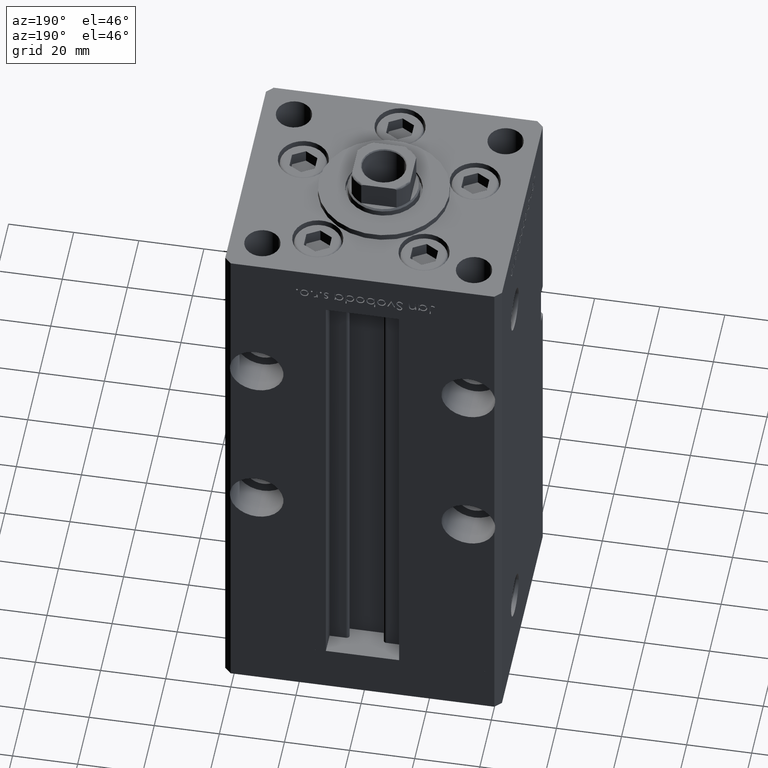
[diagram: clean part render]
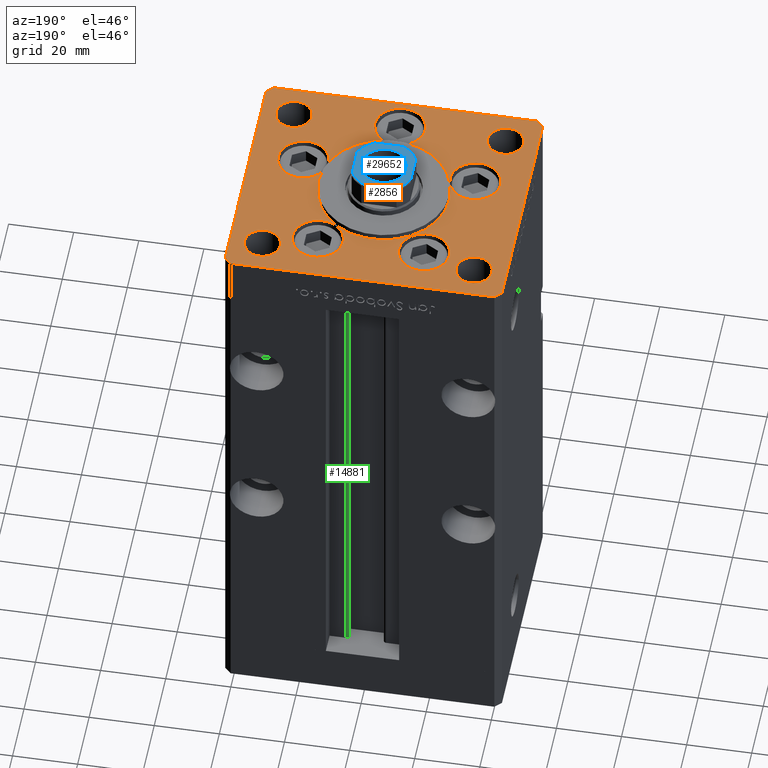
[diagram: same view with three faces highlighted in distinct colors, each labeled with its STEP entity id]
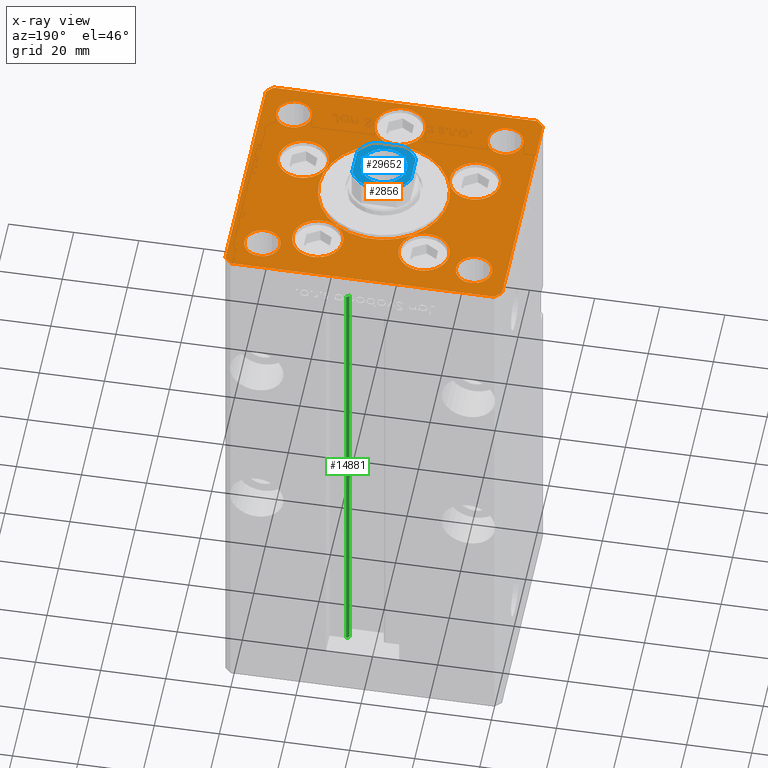
[diagram: x-ray of the same camera — body ghosted, the three highlighted faces saturated]
A machine part, auxiliary view with three faces highlighted in distinct colors.
The next image is the same camera in x-ray (body ghosted, the three faces saturated) — at least one of them is partly hidden behind the body in this view.
Their STEP definitions:

[orange] entity #2856 — the highlighted planar face has unit normal (0, 0, 1).
#17 = ORIENTED_EDGE ( 'NONE', *, *, #27231, .F. ) ;
#145 = ORIENTED_EDGE ( 'NONE', *, *, #30922, .F. ) ;
#216 = DIRECTION ( 'NONE',  ( 0.000000000000000000, 0.000000000000000000, 1.000000000000000000 ) ) ;
#678 = CARTESIAN_POINT ( 'NONE',  ( -40.50000000000000711, -37.50000000000003553, 0.000000000000000000 ) ) ;
#784 = DIRECTION ( 'NONE',  ( 0.000000000000000000, 0.000000000000000000, 1.000000000000000000 ) ) ;
#874 = LINE ( 'NONE', #34194, #36938 ) ;
#1221 = VERTEX_POINT ( 'NONE', #8527 ) ;
#1540 = FACE_BOUND ( 'NONE', #26246, .T. ) ;
#1968 = VECTOR ( 'NONE', #41469, 1000.000000000000000 ) ;
#2116 = AXIS2_PLACEMENT_3D ( 'NONE', #24696, #7783, #19868 ) ;
#2156 = EDGE_LOOP ( 'NONE', ( #9418, #145 ) ) ;
#2349 = CARTESIAN_POINT ( 'NONE',  ( 27.00000000000000355, -27.50000000000000355, 0.000000000000000000 ) ) ;
#2354 = FACE_BOUND ( 'NONE', #2156, .T. ) ;
#2856 = ADVANCED_FACE ( 'NONE', ( #14713, #6392, #22765, #2354, #1540, #31107, #47238, #18731, #10411, #51273, #46699 ), #35137, .T. ) ;
#2888 = CARTESIAN_POINT ( 'NONE',  ( 27.00000000000000355, 27.49999999999999645, 0.000000000000000000 ) ) ;
#2935 = VERTEX_POINT ( 'NONE', #2888 ) ;
#3602 = LINE ( 'NONE', #11408, #5369 ) ;
#3654 = ORIENTED_EDGE ( 'NONE', *, *, #32557, .F. ) ;
#3689 = VECTOR ( 'NONE', #16222, 1000.000000000000000 ) ;
#4049 = CARTESIAN_POINT ( 'NONE',  ( -24.07291334290544071, 22.74999999999999289, 0.000000000000000000 ) ) ;
#4136 = CARTESIAN_POINT ( 'NONE',  ( 42.50000000000000711, -35.49999999999992895, 0.000000000000000000 ) ) ;
#4265 = ORIENTED_EDGE ( 'NONE', *, *, #6419, .T. ) ;
#4510 = EDGE_LOOP ( 'NONE', ( #14331, #21443 ) ) ;
#4981 = ORIENTED_EDGE ( 'NONE', *, *, #42820, .F. ) ;
#5129 = DIRECTION ( 'NONE',  ( 0.000000000000000000, 0.000000000000000000, 1.000000000000000000 ) ) ;
#5369 = VECTOR ( 'NONE', #20251, 1000.000000000000000 ) ;
#5449 = DIRECTION ( 'NONE',  ( -1.000000000000000000, -4.283267841918041508E-16, 0.000000000000000000 ) ) ;
#5851 = VERTEX_POINT ( 'NONE', #13433 ) ;
#5930 = CARTESIAN_POINT ( 'NONE',  ( -26.39865316429777664, -9.333333333333330373, 0.000000000000000000 ) ) ;
#6000 = VERTEX_POINT ( 'NONE', #35971 ) ;
#6254 = CARTESIAN_POINT ( 'NONE',  ( -32.50000000000000000, 27.50000000000000711, 0.000000000000000000 ) ) ;
#6386 = EDGE_CURVE ( 'NONE', #12958, #12622, #3602, .T. ) ;
#6392 = FACE_BOUND ( 'NONE', #38918, .T. ) ;
#6419 = EDGE_CURVE ( 'NONE', #9071, #12958, #44195, .T. ) ;
#6482 = EDGE_CURVE ( 'NONE', #30467, #28410, #17266, .T. ) ;
#6770 = CIRCLE ( 'NONE', #12785, 7.750000000000000000 ) ;
#7496 = CARTESIAN_POINT ( 'NONE',  ( 7.750000000000000000, -28.00000000000000000, 0.000000000000000000 ) ) ;
#7588 = EDGE_LOOP ( 'NONE', ( #28521, #23246 ) ) ;
#7783 = DIRECTION ( 'NONE',  ( -0.000000000000000000, -0.000000000000000000, -1.000000000000000000 ) ) ;
#7837 = CARTESIAN_POINT ( 'NONE',  ( -38.00000000000000000, 27.50000000000000711, 0.000000000000000000 ) ) ;
#8475 = VERTEX_POINT ( 'NONE', #37775 ) ;
#8527 = CARTESIAN_POINT ( 'NONE',  ( 20.00000000000000000, -4.489600305612522259E-15, 0.000000000000000000 ) ) ;
#8566 = CIRCLE ( 'NONE', #41999, 7.750000000000000000 ) ;
#8792 = AXIS2_PLACEMENT_3D ( 'NONE', #19128, #39825, #36041 ) ;
#9071 = VERTEX_POINT ( 'NONE', #39518 ) ;
#9188 = DIRECTION ( 'NONE',  ( 1.000000000000000000, 0.000000000000000000, 0.000000000000000000 ) ) ;
#9331 = CARTESIAN_POINT ( 'NONE',  ( 0.000000000000000000, -6.938893903907228378E-15, 0.000000000000000000 ) ) ;
#9418 = ORIENTED_EDGE ( 'NONE', *, *, #24726, .F. ) ;
#9489 = CARTESIAN_POINT ( 'NONE',  ( -16.32291334290544071, 22.74999999999999289, 0.000000000000000000 ) ) ;
#9740 = CIRCLE ( 'NONE', #36360, 20.00000000000000000 ) ;
#9777 = VERTEX_POINT ( 'NONE', #31632 ) ;
#9786 = VECTOR ( 'NONE', #12536, 1000.000000000000000 ) ;
#9953 = VERTEX_POINT ( 'NONE', #678 ) ;
#10011 = VERTEX_POINT ( 'NONE', #21894 ) ;
#10069 = VERTEX_POINT ( 'NONE', #18668 ) ;
#10411 = FACE_BOUND ( 'NONE', #10686, .T. ) ;
#10434 = CARTESIAN_POINT ( 'NONE',  ( 32.50000000000000000, 27.49999999999999645, 0.000000000000000000 ) ) ;
#10663 = CARTESIAN_POINT ( 'NONE',  ( 40.50000000000000711, 37.50000000000000711, 0.000000000000000000 ) ) ;
#10686 = EDGE_LOOP ( 'NONE', ( #17, #50138 ) ) ;
#10997 = CARTESIAN_POINT ( 'NONE',  ( 16.32291334290544071, 22.74999999999999289, 0.000000000000000000 ) ) ;
#11072 = CIRCLE ( 'NONE', #47131, 7.750000000000000000 ) ;
#11408 = CARTESIAN_POINT ( 'NONE',  ( 42.50000000000001421, 35.50000000000002132, 0.000000000000000000 ) ) ;
#12031 = EDGE_LOOP ( 'NONE', ( #48258, #52156, #34393, #4265, #22915, #18317, #36911, #48874 ) ) ;
#12053 = DIRECTION ( 'NONE',  ( 0.000000000000000000, 0.000000000000000000, 1.000000000000000000 ) ) ;
#12395 = CIRCLE ( 'NONE', #42418, 5.499999999999998224 ) ;
#12536 = DIRECTION ( 'NONE',  ( -0.7071067811865536790, -0.7071067811865414665, 0.000000000000000000 ) ) ;
#12622 = VERTEX_POINT ( 'NONE', #10663 ) ;
#12785 = AXIS2_PLACEMENT_3D ( 'NONE', #9489, #33156, #49822 ) ;
#12958 = VERTEX_POINT ( 'NONE', #17173 ) ;
#13415 = AXIS2_PLACEMENT_3D ( 'NONE', #25043, #49781, #9188 ) ;
#13433 = CARTESIAN_POINT ( 'NONE',  ( -7.750000000000000000, -28.00000000000000000, 0.000000000000000000 ) ) ;
#13845 = CIRCLE ( 'NONE', #32759, 7.750000000000000000 ) ;
#14122 = VERTEX_POINT ( 'NONE', #2349 ) ;
#14331 = ORIENTED_EDGE ( 'NONE', *, *, #36630, .F. ) ;
#14630 = AXIS2_PLACEMENT_3D ( 'NONE', #9331, #46409, #21403 ) ;
#14713 = FACE_BOUND ( 'NONE', #15555, .T. ) ;
#14744 = AXIS2_PLACEMENT_3D ( 'NONE', #30571, #46425, #51009 ) ;
#15555 = EDGE_LOOP ( 'NONE', ( #33780, #3654 ) ) ;
#15575 = EDGE_CURVE ( 'NONE', #43641, #14122, #12395, .T. ) ;
#15630 = DIRECTION ( 'NONE',  ( -0.000000000000000000, -0.000000000000000000, -1.000000000000000000 ) ) ;
#15727 = LINE ( 'NONE', #48527, #49499 ) ;
#15774 = EDGE_CURVE ( 'NONE', #17085, #30467, #41274, .T. ) ;
#15917 = VECTOR ( 'NONE', #39207, 1000.000000000000000 ) ;
#16222 = DIRECTION ( 'NONE',  ( 9.773090005503145261E-17, 1.000000000000000000, 0.000000000000000000 ) ) ;
#16393 = VERTEX_POINT ( 'NONE', #37574 ) ;
#17032 = CIRCLE ( 'NONE', #37629, 5.499999999999998224 ) ;
#17085 = VERTEX_POINT ( 'NONE', #37127 ) ;
#17173 = CARTESIAN_POINT ( 'NONE',  ( 42.50000000000001421, 35.50000000000002132, 0.000000000000000000 ) ) ;
#17266 = LINE ( 'NONE', #21038, #1968 ) ;
#17316 = EDGE_CURVE ( 'NONE', #35059, #37793, #33865, .T. ) ;
#17431 = CARTESIAN_POINT ( 'NONE',  ( 40.50000000000001421, -37.49999999999992184, 0.000000000000000000 ) ) ;
#17705 = CARTESIAN_POINT ( 'NONE',  ( -42.50000000000000000, -35.50000000000004263, 0.000000000000000000 ) ) ;
#18270 = DIRECTION ( 'NONE',  ( 1.000000000000000000, 0.000000000000000000, 0.000000000000000000 ) ) ;
#18317 = ORIENTED_EDGE ( 'NONE', *, *, #33705, .T. ) ;
#18475 = VERTEX_POINT ( 'NONE', #26439 ) ;
#18668 = CARTESIAN_POINT ( 'NONE',  ( 8.572913342905442491, 22.74999999999999289, 0.000000000000000000 ) ) ;
#18722 = AXIS2_PLACEMENT_3D ( 'NONE', #24666, #216, #49153 ) ;
#18731 = FACE_BOUND ( 'NONE', #34994, .T. ) ;
#19013 = DIRECTION ( 'NONE',  ( 0.000000000000000000, 0.000000000000000000, 1.000000000000000000 ) ) ;
#19128 = CARTESIAN_POINT ( 'NONE',  ( -32.50000000000000000, -27.50000000000000355, 0.000000000000000000 ) ) ;
#19165 = EDGE_CURVE ( 'NONE', #28410, #9953, #31157, .T. ) ;
#19401 = DIRECTION ( 'NONE',  ( -1.000000000000000000, 0.000000000000000000, 0.000000000000000000 ) ) ;
#19868 = DIRECTION ( 'NONE',  ( -1.000000000000000000, 0.000000000000000000, 0.000000000000000000 ) ) ;
#20108 = CARTESIAN_POINT ( 'NONE',  ( 26.39865316429777664, -9.333333333333330373, 0.000000000000000000 ) ) ;
#20251 = DIRECTION ( 'NONE',  ( -0.7071067811865524577, 0.7071067811865426878, 0.000000000000000000 ) ) ;
#20353 = DIRECTION ( 'NONE',  ( 1.000000000000000000, 0.000000000000000000, 0.000000000000000000 ) ) ;
#20570 = ORIENTED_EDGE ( 'NONE', *, *, #21860, .F. ) ;
#20742 = AXIS2_PLACEMENT_3D ( 'NONE', #49135, #48603, #20353 ) ;
#21038 = CARTESIAN_POINT ( 'NONE',  ( -42.50000000000000711, 35.50000000000000000, 0.000000000000000000 ) ) ;
#21370 = CARTESIAN_POINT ( 'NONE',  ( -40.50000000000000000, 37.49999999999997158, 0.000000000000000000 ) ) ;
#21403 = DIRECTION ( 'NONE',  ( 1.000000000000000000, 0.000000000000000000, 0.000000000000000000 ) ) ;
#21427 = EDGE_CURVE ( 'NONE', #9953, #36893, #15727, .T. ) ;
#21443 = ORIENTED_EDGE ( 'NONE', *, *, #32440, .F. ) ;
#21860 = EDGE_CURVE ( 'NONE', #25613, #6000, #24581, .T. ) ;
#21894 = CARTESIAN_POINT ( 'NONE',  ( -38.00000000000000000, -27.50000000000000355, 0.000000000000000000 ) ) ;
#22130 = EDGE_CURVE ( 'NONE', #2935, #18475, #35880, .T. ) ;
#22765 = FACE_BOUND ( 'NONE', #4510, .T. ) ;
#22915 = ORIENTED_EDGE ( 'NONE', *, *, #6386, .T. ) ;
#23246 = ORIENTED_EDGE ( 'NONE', *, *, #17316, .T. ) ;
#23315 = CARTESIAN_POINT ( 'NONE',  ( 16.32291334290544071, 22.74999999999999289, 0.000000000000000000 ) ) ;
#23584 = ORIENTED_EDGE ( 'NONE', *, *, #15575, .T. ) ;
#24016 = DIRECTION ( 'NONE',  ( -1.000000000000000000, 0.000000000000000000, 0.000000000000000000 ) ) ;
#24234 = AXIS2_PLACEMENT_3D ( 'NONE', #26328, #42721, #30634 ) ;
#24309 = EDGE_CURVE ( 'NONE', #37793, #35059, #17032, .T. ) ;
#24581 = CIRCLE ( 'NONE', #13415, 7.750000000000000000 ) ;
#24666 = CARTESIAN_POINT ( 'NONE',  ( -32.50000000000000000, -27.50000000000000355, 0.000000000000000000 ) ) ;
#24696 = CARTESIAN_POINT ( 'NONE',  ( -32.50000000000000000, 27.50000000000000711, 0.000000000000000000 ) ) ;
#24726 = EDGE_CURVE ( 'NONE', #27779, #44356, #11072, .T. ) ;
#25043 = CARTESIAN_POINT ( 'NONE',  ( -26.39865316429777664, -9.333333333333330373, 0.000000000000000000 ) ) ;
#25279 = EDGE_CURVE ( 'NONE', #5851, #27235, #51432, .T. ) ;
#25563 = EDGE_LOOP ( 'NONE', ( #4981, #20570 ) ) ;
#25613 = VERTEX_POINT ( 'NONE', #47538 ) ;
#25734 = DIRECTION ( 'NONE',  ( -1.000000000000000000, 0.000000000000000000, 0.000000000000000000 ) ) ;
#26246 = EDGE_LOOP ( 'NONE', ( #42122, #45047 ) ) ;
#26328 = CARTESIAN_POINT ( 'NONE',  ( -16.32291334290544071, 22.74999999999999289, 0.000000000000000000 ) ) ;
#26439 = CARTESIAN_POINT ( 'NONE',  ( 38.00000000000000000, 27.49999999999999645, 0.000000000000000000 ) ) ;
#26740 = CIRCLE ( 'NONE', #20742, 7.750000000000000000 ) ;
#26882 = ORIENTED_EDGE ( 'NONE', *, *, #50099, .F. ) ;
#27231 = EDGE_CURVE ( 'NONE', #9777, #10011, #49656, .T. ) ;
#27235 = VERTEX_POINT ( 'NONE', #7496 ) ;
#27303 = AXIS2_PLACEMENT_3D ( 'NONE', #40573, #784, #36549 ) ;
#27358 = DIRECTION ( 'NONE',  ( 1.000000000000000000, 0.000000000000000000, 0.000000000000000000 ) ) ;
#27779 = VERTEX_POINT ( 'NONE', #51213 ) ;
#28325 = CARTESIAN_POINT ( 'NONE',  ( 32.50000000000000000, -27.50000000000000355, 0.000000000000000000 ) ) ;
#28345 = AXIS2_PLACEMENT_3D ( 'NONE', #10997, #35958, #48074 ) ;
#28410 = VERTEX_POINT ( 'NONE', #35144 ) ;
#28521 = ORIENTED_EDGE ( 'NONE', *, *, #24309, .T. ) ;
#28799 = EDGE_CURVE ( 'NONE', #29898, #8475, #6770, .T. ) ;
#29898 = VERTEX_POINT ( 'NONE', #4049 ) ;
#30467 = VERTEX_POINT ( 'NONE', #43860 ) ;
#30562 = CARTESIAN_POINT ( 'NONE',  ( 0.000000000000000000, -6.938893903907228378E-15, 0.000000000000000000 ) ) ;
#30571 = CARTESIAN_POINT ( 'NONE',  ( 0.000000000000000000, 0.000000000000000000, 0.000000000000000000 ) ) ;
#30634 = DIRECTION ( 'NONE',  ( 1.000000000000000000, 0.000000000000000000, 0.000000000000000000 ) ) ;
#30788 = DIRECTION ( 'NONE',  ( 1.000000000000000000, 0.000000000000000000, 0.000000000000000000 ) ) ;
#30922 = EDGE_CURVE ( 'NONE', #44356, #27779, #8566, .T. ) ;
#30930 = CIRCLE ( 'NONE', #14630, 20.00000000000000000 ) ;
#31107 = FACE_BOUND ( 'NONE', #25563, .T. ) ;
#31157 = LINE ( 'NONE', #17705, #15917 ) ;
#31399 = DIRECTION ( 'NONE',  ( 0.000000000000000000, 0.000000000000000000, 1.000000000000000000 ) ) ;
#31632 = CARTESIAN_POINT ( 'NONE',  ( -27.00000000000000355, -27.50000000000000355, 0.000000000000000000 ) ) ;
#31960 = CIRCLE ( 'NONE', #24234, 7.750000000000000000 ) ;
#32064 = CARTESIAN_POINT ( 'NONE',  ( 18.64865316429777664, -9.333333333333328596, 0.000000000000000000 ) ) ;
#32440 = EDGE_CURVE ( 'NONE', #10069, #52898, #42041, .T. ) ;
#32557 = EDGE_CURVE ( 'NONE', #1221, #16393, #30930, .T. ) ;
#32759 = AXIS2_PLACEMENT_3D ( 'NONE', #23315, #31399, #47803 ) ;
#33156 = DIRECTION ( 'NONE',  ( 0.000000000000000000, 0.000000000000000000, 1.000000000000000000 ) ) ;
#33435 = LINE ( 'NONE', #17431, #36468 ) ;
#33705 = EDGE_CURVE ( 'NONE', #12622, #17085, #874, .T. ) ;
#33780 = ORIENTED_EDGE ( 'NONE', *, *, #46949, .F. ) ;
#33865 = CIRCLE ( 'NONE', #2116, 5.499999999999998224 ) ;
#34194 = CARTESIAN_POINT ( 'NONE',  ( 40.50000000000000711, 37.50000000000000711, 0.000000000000000000 ) ) ;
#34321 = DIRECTION ( 'NONE',  ( 0.000000000000000000, 0.000000000000000000, 1.000000000000000000 ) ) ;
#34393 = ORIENTED_EDGE ( 'NONE', *, *, #51441, .T. ) ;
#34643 = ORIENTED_EDGE ( 'NONE', *, *, #39306, .F. ) ;
#34994 = EDGE_LOOP ( 'NONE', ( #26882, #49924 ) ) ;
#35059 = VERTEX_POINT ( 'NONE', #7837 ) ;
#35137 = PLANE ( 'NONE',  #14744 ) ;
#35144 = CARTESIAN_POINT ( 'NONE',  ( -42.50000000000000000, -35.50000000000004263, 0.000000000000000000 ) ) ;
#35753 = CARTESIAN_POINT ( 'NONE',  ( 38.00000000000000000, -27.50000000000000355, 0.000000000000000000 ) ) ;
#35880 = CIRCLE ( 'NONE', #27303, 5.499999999999998224 ) ;
#35958 = DIRECTION ( 'NONE',  ( 0.000000000000000000, 0.000000000000000000, 1.000000000000000000 ) ) ;
#35971 = CARTESIAN_POINT ( 'NONE',  ( -18.64865316429777664, -9.333333333333330373, 0.000000000000000000 ) ) ;
#36041 = DIRECTION ( 'NONE',  ( 1.000000000000000000, 0.000000000000000000, 0.000000000000000000 ) ) ;
#36360 = AXIS2_PLACEMENT_3D ( 'NONE', #30562, #34321, #50461 ) ;
#36401 = CIRCLE ( 'NONE', #45849, 5.499999999999998224 ) ;
#36468 = VECTOR ( 'NONE', #37591, 1000.000000000000114 ) ;
#36549 = DIRECTION ( 'NONE',  ( 1.000000000000000000, 0.000000000000000000, 0.000000000000000000 ) ) ;
#36630 = EDGE_CURVE ( 'NONE', #52898, #10069, #13845, .T. ) ;
#36893 = VERTEX_POINT ( 'NONE', #42215 ) ;
#36911 = ORIENTED_EDGE ( 'NONE', *, *, #15774, .T. ) ;
#36913 = DIRECTION ( 'NONE',  ( -0.000000000000000000, -0.000000000000000000, -1.000000000000000000 ) ) ;
#36938 = VECTOR ( 'NONE', #5449, 1000.000000000000000 ) ;
#37127 = CARTESIAN_POINT ( 'NONE',  ( -40.50000000000000000, 37.49999999999997158, 0.000000000000000000 ) ) ;
#37190 = EDGE_CURVE ( 'NONE', #27235, #5851, #26740, .T. ) ;
#37574 = CARTESIAN_POINT ( 'NONE',  ( -20.00000000000000000, -6.938893903907228378E-15, 0.000000000000000000 ) ) ;
#37591 = DIRECTION ( 'NONE',  ( 0.7071067811865474617, 0.7071067811865474617, 0.000000000000000000 ) ) ;
#37629 = AXIS2_PLACEMENT_3D ( 'NONE', #6254, #15630, #19401 ) ;
#37775 = CARTESIAN_POINT ( 'NONE',  ( -8.572913342905440715, 22.74999999999999289, 0.000000000000000000 ) ) ;
#37793 = VERTEX_POINT ( 'NONE', #52506 ) ;
#38918 = EDGE_LOOP ( 'NONE', ( #34643, #52561 ) ) ;
#39109 = CARTESIAN_POINT ( 'NONE',  ( 26.39865316429777664, -9.333333333333330373, 0.000000000000000000 ) ) ;
#39115 = EDGE_CURVE ( 'NONE', #10011, #9777, #46528, .T. ) ;
#39207 = DIRECTION ( 'NONE',  ( 0.7071067811865487940, -0.7071067811865463515, 0.000000000000000000 ) ) ;
#39306 = EDGE_CURVE ( 'NONE', #8475, #29898, #31960, .T. ) ;
#39518 = CARTESIAN_POINT ( 'NONE',  ( 42.50000000000000711, -35.49999999999992895, 0.000000000000000000 ) ) ;
#39825 = DIRECTION ( 'NONE',  ( 0.000000000000000000, 0.000000000000000000, 1.000000000000000000 ) ) ;
#40015 = EDGE_LOOP ( 'NONE', ( #23584, #52558 ) ) ;
#40527 = AXIS2_PLACEMENT_3D ( 'NONE', #5930, #46509, #18270 ) ;
#40573 = CARTESIAN_POINT ( 'NONE',  ( 32.50000000000000000, 27.49999999999999645, 0.000000000000000000 ) ) ;
#41274 = LINE ( 'NONE', #21370, #9786 ) ;
#41469 = DIRECTION ( 'NONE',  ( 9.773090005503134168E-17, -1.000000000000000000, 0.000000000000000000 ) ) ;
#41999 = AXIS2_PLACEMENT_3D ( 'NONE', #20108, #12053, #44060 ) ;
#42041 = CIRCLE ( 'NONE', #28345, 7.750000000000000000 ) ;
#42122 = ORIENTED_EDGE ( 'NONE', *, *, #37190, .F. ) ;
#42202 = DIRECTION ( 'NONE',  ( 1.000000000000000000, 0.000000000000000000, 0.000000000000000000 ) ) ;
#42215 = CARTESIAN_POINT ( 'NONE',  ( 40.50000000000001421, -37.49999999999992184, 0.000000000000000000 ) ) ;
#42418 = AXIS2_PLACEMENT_3D ( 'NONE', #50214, #46181, #25734 ) ;
#42721 = DIRECTION ( 'NONE',  ( 0.000000000000000000, 0.000000000000000000, 1.000000000000000000 ) ) ;
#42820 = EDGE_CURVE ( 'NONE', #6000, #25613, #43118, .T. ) ;
#43118 = CIRCLE ( 'NONE', #40527, 7.750000000000000000 ) ;
#43641 = VERTEX_POINT ( 'NONE', #35753 ) ;
#43860 = CARTESIAN_POINT ( 'NONE',  ( -42.50000000000000711, 35.50000000000000000, 0.000000000000000000 ) ) ;
#44060 = DIRECTION ( 'NONE',  ( 1.000000000000000000, 0.000000000000000000, 0.000000000000000000 ) ) ;
#44195 = LINE ( 'NONE', #4136, #3689 ) ;
#44356 = VERTEX_POINT ( 'NONE', #32064 ) ;
#45047 = ORIENTED_EDGE ( 'NONE', *, *, #25279, .F. ) ;
#45048 = CIRCLE ( 'NONE', #49315, 5.499999999999998224 ) ;
#45849 = AXIS2_PLACEMENT_3D ( 'NONE', #28325, #36913, #24016 ) ;
#46078 = DIRECTION ( 'NONE',  ( 1.000000000000000000, 1.370645709413773283E-15, 0.000000000000000000 ) ) ;
#46181 = DIRECTION ( 'NONE',  ( -0.000000000000000000, -0.000000000000000000, -1.000000000000000000 ) ) ;
#46409 = DIRECTION ( 'NONE',  ( 0.000000000000000000, 0.000000000000000000, 1.000000000000000000 ) ) ;
#46425 = DIRECTION ( 'NONE',  ( -0.000000000000000000, 0.000000000000000000, 1.000000000000000000 ) ) ;
#46509 = DIRECTION ( 'NONE',  ( 0.000000000000000000, 0.000000000000000000, 1.000000000000000000 ) ) ;
#46528 = CIRCLE ( 'NONE', #8792, 5.499999999999998224 ) ;
#46699 = FACE_BOUND ( 'NONE', #40015, .T. ) ;
#46949 = EDGE_CURVE ( 'NONE', #16393, #1221, #9740, .T. ) ;
#47046 = CARTESIAN_POINT ( 'NONE',  ( 0.000000000000000000, -28.00000000000000000, 0.000000000000000000 ) ) ;
#47131 = AXIS2_PLACEMENT_3D ( 'NONE', #39109, #50956, #30788 ) ;
#47238 = FACE_BOUND ( 'NONE', #7588, .T. ) ;
#47538 = CARTESIAN_POINT ( 'NONE',  ( -34.14865316429777664, -9.333333333333328596, 0.000000000000000000 ) ) ;
#47803 = DIRECTION ( 'NONE',  ( 1.000000000000000000, 0.000000000000000000, 0.000000000000000000 ) ) ;
#48074 = DIRECTION ( 'NONE',  ( 1.000000000000000000, 0.000000000000000000, 0.000000000000000000 ) ) ;
#48258 = ORIENTED_EDGE ( 'NONE', *, *, #19165, .T. ) ;
#48527 = CARTESIAN_POINT ( 'NONE',  ( -40.50000000000000711, -37.50000000000003553, 0.000000000000000000 ) ) ;
#48545 = EDGE_CURVE ( 'NONE', #14122, #43641, #36401, .T. ) ;
#48603 = DIRECTION ( 'NONE',  ( 0.000000000000000000, 0.000000000000000000, 1.000000000000000000 ) ) ;
#48874 = ORIENTED_EDGE ( 'NONE', *, *, #6482, .T. ) ;
#49135 = CARTESIAN_POINT ( 'NONE',  ( 0.000000000000000000, -28.00000000000000000, 0.000000000000000000 ) ) ;
#49153 = DIRECTION ( 'NONE',  ( 1.000000000000000000, 0.000000000000000000, 0.000000000000000000 ) ) ;
#49315 = AXIS2_PLACEMENT_3D ( 'NONE', #10434, #19013, #27358 ) ;
#49499 = VECTOR ( 'NONE', #46078, 1000.000000000000000 ) ;
#49656 = CIRCLE ( 'NONE', #18722, 5.499999999999998224 ) ;
#49781 = DIRECTION ( 'NONE',  ( 0.000000000000000000, 0.000000000000000000, 1.000000000000000000 ) ) ;
#49822 = DIRECTION ( 'NONE',  ( 1.000000000000000000, 0.000000000000000000, 0.000000000000000000 ) ) ;
#49924 = ORIENTED_EDGE ( 'NONE', *, *, #22130, .F. ) ;
#50099 = EDGE_CURVE ( 'NONE', #18475, #2935, #45048, .T. ) ;
#50138 = ORIENTED_EDGE ( 'NONE', *, *, #39115, .F. ) ;
#50214 = CARTESIAN_POINT ( 'NONE',  ( 32.50000000000000000, -27.50000000000000355, 0.000000000000000000 ) ) ;
#50461 = DIRECTION ( 'NONE',  ( 1.000000000000000000, 0.000000000000000000, 0.000000000000000000 ) ) ;
#50545 = AXIS2_PLACEMENT_3D ( 'NONE', #47046, #5129, #42202 ) ;
#50956 = DIRECTION ( 'NONE',  ( 0.000000000000000000, 0.000000000000000000, 1.000000000000000000 ) ) ;
#51009 = DIRECTION ( 'NONE',  ( 1.000000000000000000, 0.000000000000000000, 0.000000000000000000 ) ) ;
#51213 = CARTESIAN_POINT ( 'NONE',  ( 34.14865316429777664, -9.333333333333330373, 0.000000000000000000 ) ) ;
#51273 = FACE_OUTER_BOUND ( 'NONE', #12031, .T. ) ;
#51432 = CIRCLE ( 'NONE', #50545, 7.750000000000000000 ) ;
#51441 = EDGE_CURVE ( 'NONE', #36893, #9071, #33435, .T. ) ;
#52156 = ORIENTED_EDGE ( 'NONE', *, *, #21427, .T. ) ;
#52307 = CARTESIAN_POINT ( 'NONE',  ( 24.07291334290544071, 22.74999999999999289, 0.000000000000000000 ) ) ;
#52506 = CARTESIAN_POINT ( 'NONE',  ( -27.00000000000000355, 27.50000000000000711, 0.000000000000000000 ) ) ;
#52558 = ORIENTED_EDGE ( 'NONE', *, *, #48545, .T. ) ;
#52561 = ORIENTED_EDGE ( 'NONE', *, *, #28799, .F. ) ;
#52898 = VERTEX_POINT ( 'NONE', #52307 ) ;

[blue] entity #29652 — the highlighted planar face has unit normal (0, 0, 1).
#160 = ORIENTED_EDGE ( 'NONE', *, *, #1423, .T. ) ;
#997 = DIRECTION ( 'NONE',  ( 9.637352644315595243E-17, -1.000000000000000000, 0.000000000000000000 ) ) ;
#1423 = EDGE_CURVE ( 'NONE', #10541, #47428, #16193, .T. ) ;
#1448 = CARTESIAN_POINT ( 'NONE',  ( 0.000000000000000000, 0.000000000000000000, 155.7500000000000000 ) ) ;
#1860 = VERTEX_POINT ( 'NONE', #48600 ) ;
#2921 = AXIS2_PLACEMENT_3D ( 'NONE', #29511, #12855, #16622 ) ;
#3038 = CARTESIAN_POINT ( 'NONE',  ( 0.000000000000000000, 0.000000000000000000, 155.7500000000000000 ) ) ;
#3327 = PLANE ( 'NONE',  #40276 ) ;
#3423 = LINE ( 'NONE', #28135, #10218 ) ;
#4456 = AXIS2_PLACEMENT_3D ( 'NONE', #36892, #53037, #16210 ) ;
#4826 = CIRCLE ( 'NONE', #25426, 10.00000000000000000 ) ;
#5513 = CARTESIAN_POINT ( 'NONE',  ( 9.000000000000000000, 4.358898943540675752, 155.7500000000000000 ) ) ;
#7077 = CARTESIAN_POINT ( 'NONE',  ( -9.000000000000000000, 8.999999999999998224, 155.7500000000000000 ) ) ;
#7236 = CARTESIAN_POINT ( 'NONE',  ( -9.000000000000000000, -4.358898943540675752, 155.7500000000000000 ) ) ;
#7342 = LINE ( 'NONE', #7077, #23693 ) ;
#8132 = VERTEX_POINT ( 'NONE', #45464 ) ;
#8909 = VERTEX_POINT ( 'NONE', #49253 ) ;
#10218 = VECTOR ( 'NONE', #12281, 1000.000000000000000 ) ;
#10394 = CARTESIAN_POINT ( 'NONE',  ( 0.000000000000000000, 0.000000000000000000, 155.7500000000000000 ) ) ;
#10541 = VERTEX_POINT ( 'NONE', #16423 ) ;
#10675 = DIRECTION ( 'NONE',  ( -0.000000000000000000, 0.000000000000000000, 1.000000000000000000 ) ) ;
#10681 = CIRCLE ( 'NONE', #2921, 10.00000000000000000 ) ;
#12281 = DIRECTION ( 'NONE',  ( 1.000000000000000000, 0.000000000000000000, 0.000000000000000000 ) ) ;
#12312 = VERTEX_POINT ( 'NONE', #21723 ) ;
#12436 = CARTESIAN_POINT ( 'NONE',  ( 9.000000000000000000, 8.999999999999998224, 155.7500000000000000 ) ) ;
#12695 = DIRECTION ( 'NONE',  ( -9.637352644315595243E-17, 1.000000000000000000, -0.000000000000000000 ) ) ;
#12855 = DIRECTION ( 'NONE',  ( -0.000000000000000000, 0.000000000000000000, 1.000000000000000000 ) ) ;
#13371 = CARTESIAN_POINT ( 'NONE',  ( -9.000000000000000000, 8.999999999999998224, 155.7500000000000000 ) ) ;
#14705 = AXIS2_PLACEMENT_3D ( 'NONE', #3038, #19416, #50891 ) ;
#15418 = FACE_BOUND ( 'NONE', #42640, .T. ) ;
#16193 = LINE ( 'NONE', #12436, #31855 ) ;
#16210 = DIRECTION ( 'NONE',  ( 1.000000000000000000, 0.000000000000000000, 0.000000000000000000 ) ) ;
#16423 = CARTESIAN_POINT ( 'NONE',  ( 9.000000000000001776, -4.358898943540675752, 155.7500000000000000 ) ) ;
#16622 = DIRECTION ( 'NONE',  ( 1.000000000000000000, 0.000000000000000000, 0.000000000000000000 ) ) ;
#19416 = DIRECTION ( 'NONE',  ( 0.000000000000000000, -0.000000000000000000, -1.000000000000000000 ) ) ;
#19703 = DIRECTION ( 'NONE',  ( -0.000000000000000000, 0.000000000000000000, 1.000000000000000000 ) ) ;
#20124 = VERTEX_POINT ( 'NONE', #7236 ) ;
#20670 = EDGE_CURVE ( 'NONE', #1860, #37511, #7342, .T. ) ;
#21574 = EDGE_CURVE ( 'NONE', #20124, #8132, #4826, .T. ) ;
#21723 = CARTESIAN_POINT ( 'NONE',  ( 7.050000000000000711, 0.000000000000000000, 155.7500000000000000 ) ) ;
#21841 = ORIENTED_EDGE ( 'NONE', *, *, #25750, .T. ) ;
#21873 = CARTESIAN_POINT ( 'NONE',  ( 0.000000000000000000, 0.000000000000000000, 155.7500000000000000 ) ) ;
#22267 = EDGE_LOOP ( 'NONE', ( #38421, #35710, #21841, #48306, #160, #23284, #44674, #39912 ) ) ;
#23102 = VECTOR ( 'NONE', #997, 1000.000000000000000 ) ;
#23284 = ORIENTED_EDGE ( 'NONE', *, *, #32628, .T. ) ;
#23693 = VECTOR ( 'NONE', #35820, 1000.000000000000000 ) ;
#24108 = CIRCLE ( 'NONE', #14705, 7.050000000000000711 ) ;
#24158 = ORIENTED_EDGE ( 'NONE', *, *, #35856, .T. ) ;
#25426 = AXIS2_PLACEMENT_3D ( 'NONE', #1448, #50643, #46868 ) ;
#25750 = EDGE_CURVE ( 'NONE', #8132, #8909, #3423, .T. ) ;
#26826 = CARTESIAN_POINT ( 'NONE',  ( -7.050000000000000711, 8.633759933988840961E-16, 155.7500000000000000 ) ) ;
#27477 = AXIS2_PLACEMENT_3D ( 'NONE', #10394, #10675, #35651 ) ;
#28135 = CARTESIAN_POINT ( 'NONE',  ( -8.999999999999998224, -9.000000000000001776, 155.7500000000000000 ) ) ;
#28962 = LINE ( 'NONE', #13371, #23102 ) ;
#29511 = CARTESIAN_POINT ( 'NONE',  ( 0.000000000000000000, 0.000000000000000000, 155.7500000000000000 ) ) ;
#29652 = ADVANCED_FACE ( 'NONE', ( #15418, #40655 ), #3327, .T. ) ;
#30188 = EDGE_CURVE ( 'NONE', #42397, #20124, #28962, .T. ) ;
#30430 = ORIENTED_EDGE ( 'NONE', *, *, #42019, .T. ) ;
#31079 = AXIS2_PLACEMENT_3D ( 'NONE', #21873, #38531, #34511 ) ;
#31855 = VECTOR ( 'NONE', #12695, 1000.000000000000000 ) ;
#32628 = EDGE_CURVE ( 'NONE', #47428, #1860, #49809, .T. ) ;
#34511 = DIRECTION ( 'NONE',  ( 1.000000000000000000, 0.000000000000000000, 0.000000000000000000 ) ) ;
#35651 = DIRECTION ( 'NONE',  ( 1.000000000000000000, 0.000000000000000000, 0.000000000000000000 ) ) ;
#35710 = ORIENTED_EDGE ( 'NONE', *, *, #21574, .T. ) ;
#35820 = DIRECTION ( 'NONE',  ( -1.000000000000000000, -0.000000000000000000, -0.000000000000000000 ) ) ;
#35856 = EDGE_CURVE ( 'NONE', #36485, #12312, #24108, .T. ) ;
#36094 = DIRECTION ( 'NONE',  ( 1.000000000000000000, 0.000000000000000000, 0.000000000000000000 ) ) ;
#36426 = CARTESIAN_POINT ( 'NONE',  ( -4.358898943540678417, 8.999999999999998224, 155.7500000000000000 ) ) ;
#36485 = VERTEX_POINT ( 'NONE', #26826 ) ;
#36892 = CARTESIAN_POINT ( 'NONE',  ( 0.000000000000000000, 0.000000000000000000, 155.7500000000000000 ) ) ;
#37511 = VERTEX_POINT ( 'NONE', #36426 ) ;
#38005 = EDGE_CURVE ( 'NONE', #8909, #10541, #38771, .T. ) ;
#38421 = ORIENTED_EDGE ( 'NONE', *, *, #30188, .T. ) ;
#38531 = DIRECTION ( 'NONE',  ( 0.000000000000000000, -0.000000000000000000, -1.000000000000000000 ) ) ;
#38767 = CIRCLE ( 'NONE', #31079, 7.050000000000000711 ) ;
#38771 = CIRCLE ( 'NONE', #4456, 10.00000000000000000 ) ;
#39912 = ORIENTED_EDGE ( 'NONE', *, *, #48163, .T. ) ;
#40276 = AXIS2_PLACEMENT_3D ( 'NONE', #49008, #19703, #36094 ) ;
#40655 = FACE_OUTER_BOUND ( 'NONE', #22267, .T. ) ;
#42019 = EDGE_CURVE ( 'NONE', #12312, #36485, #38767, .T. ) ;
#42397 = VERTEX_POINT ( 'NONE', #51650 ) ;
#42640 = EDGE_LOOP ( 'NONE', ( #30430, #24158 ) ) ;
#44674 = ORIENTED_EDGE ( 'NONE', *, *, #20670, .T. ) ;
#45464 = CARTESIAN_POINT ( 'NONE',  ( -4.358898943540671311, -9.000000000000001776, 155.7500000000000000 ) ) ;
#46868 = DIRECTION ( 'NONE',  ( 1.000000000000000000, 0.000000000000000000, 0.000000000000000000 ) ) ;
#47428 = VERTEX_POINT ( 'NONE', #5513 ) ;
#48163 = EDGE_CURVE ( 'NONE', #37511, #42397, #10681, .T. ) ;
#48306 = ORIENTED_EDGE ( 'NONE', *, *, #38005, .T. ) ;
#48600 = CARTESIAN_POINT ( 'NONE',  ( 4.358898943540677529, 8.999999999999998224, 155.7500000000000000 ) ) ;
#49008 = CARTESIAN_POINT ( 'NONE',  ( 0.000000000000000000, 0.000000000000000000, 155.7500000000000000 ) ) ;
#49253 = CARTESIAN_POINT ( 'NONE',  ( 4.358898943540671311, -9.000000000000001776, 155.7500000000000000 ) ) ;
#49809 = CIRCLE ( 'NONE', #27477, 10.00000000000000000 ) ;
#50643 = DIRECTION ( 'NONE',  ( -0.000000000000000000, 0.000000000000000000, 1.000000000000000000 ) ) ;
#50891 = DIRECTION ( 'NONE',  ( 1.000000000000000000, 0.000000000000000000, 0.000000000000000000 ) ) ;
#51650 = CARTESIAN_POINT ( 'NONE',  ( -9.000000000000000000, 4.358898943540674864, 155.7500000000000000 ) ) ;
#53037 = DIRECTION ( 'NONE',  ( -0.000000000000000000, 0.000000000000000000, 1.000000000000000000 ) ) ;

[green] entity #14881 — the highlighted cylindrical surface (edge-blend (fillet) strip) has radius 0.9333 mm, axis along (0, 0, 1).
#43 = CARTESIAN_POINT ( 'NONE',  ( 6.183333333333997928, 30.06666666666599852, 148.5000000000000000 ) ) ;
#182 = CIRCLE ( 'NONE', #47435, 0.9333333333340008142 ) ;
#2887 = CARTESIAN_POINT ( 'NONE',  ( 6.183333333333997928, 30.06666666666599852, 0.000000000000000000 ) ) ;
#3058 = CARTESIAN_POINT ( 'NONE',  ( 5.375042956467946276, 29.59999999999899600, 148.5000000000000000 ) ) ;
#3151 = CYLINDRICAL_SURFACE ( 'NONE', #51891, 0.9333333333340008142 ) ;
#4382 = ORIENTED_EDGE ( 'NONE', *, *, #34683, .F. ) ;
#7923 = ORIENTED_EDGE ( 'NONE', *, *, #28016, .F. ) ;
#9035 = CARTESIAN_POINT ( 'NONE',  ( 6.183333333333997928, 31.00000000000000000, 0.000000000000000000 ) ) ;
#9427 = DIRECTION ( 'NONE',  ( 1.000000000000000000, 0.000000000000000000, 0.000000000000000000 ) ) ;
#9948 = DIRECTION ( 'NONE',  ( 1.000000000000000000, 0.000000000000000000, 0.000000000000000000 ) ) ;
#10403 = VECTOR ( 'NONE', #26219, 1000.000000000000000 ) ;
#13586 = CIRCLE ( 'NONE', #39331, 0.9333333333340008142 ) ;
#14881 = ADVANCED_FACE ( 'NONE', ( #23557 ), #3151, .T. ) ;
#15457 = EDGE_LOOP ( 'NONE', ( #4382, #7923, #39062, #48371 ) ) ;
#23557 = FACE_OUTER_BOUND ( 'NONE', #15457, .T. ) ;
#25414 = DIRECTION ( 'NONE',  ( -0.000000000000000000, -0.000000000000000000, 1.000000000000000000 ) ) ;
#25423 = LINE ( 'NONE', #25945, #10403 ) ;
#25945 = CARTESIAN_POINT ( 'NONE',  ( 5.375042956467947164, 29.59999999999899245, 0.000000000000000000 ) ) ;
#26067 = CARTESIAN_POINT ( 'NONE',  ( 6.183333333333997928, 30.06666666666599852, 0.000000000000000000 ) ) ;
#26219 = DIRECTION ( 'NONE',  ( -0.000000000000000000, -0.000000000000000000, 1.000000000000000000 ) ) ;
#27075 = VERTEX_POINT ( 'NONE', #43264 ) ;
#28016 = EDGE_CURVE ( 'NONE', #43506, #27075, #13586, .T. ) ;
#30184 = VERTEX_POINT ( 'NONE', #49144 ) ;
#30374 = DIRECTION ( 'NONE',  ( -0.000000000000000000, -0.000000000000000000, -1.000000000000000000 ) ) ;
#32688 = VECTOR ( 'NONE', #25414, 1000.000000000000000 ) ;
#33476 = LINE ( 'NONE', #9035, #32688 ) ;
#34683 = EDGE_CURVE ( 'NONE', #27075, #30184, #33476, .T. ) ;
#35354 = EDGE_CURVE ( 'NONE', #43506, #44267, #25423, .T. ) ;
#35394 = DIRECTION ( 'NONE',  ( 1.000000000000000000, 0.000000000000000000, 0.000000000000000000 ) ) ;
#35917 = DIRECTION ( 'NONE',  ( -0.000000000000000000, -0.000000000000000000, 1.000000000000000000 ) ) ;
#39062 = ORIENTED_EDGE ( 'NONE', *, *, #35354, .T. ) ;
#39331 = AXIS2_PLACEMENT_3D ( 'NONE', #26067, #30374, #9948 ) ;
#42699 = EDGE_CURVE ( 'NONE', #44267, #30184, #182, .T. ) ;
#43264 = CARTESIAN_POINT ( 'NONE',  ( 6.183333333333997928, 31.00000000000000000, 0.000000000000000000 ) ) ;
#43506 = VERTEX_POINT ( 'NONE', #46001 ) ;
#44267 = VERTEX_POINT ( 'NONE', #3058 ) ;
#46001 = CARTESIAN_POINT ( 'NONE',  ( 5.375042956467947164, 29.59999999999899245, 0.000000000000000000 ) ) ;
#46252 = DIRECTION ( 'NONE',  ( 0.000000000000000000, 0.000000000000000000, -1.000000000000000000 ) ) ;
#47435 = AXIS2_PLACEMENT_3D ( 'NONE', #43, #46252, #9427 ) ;
#48371 = ORIENTED_EDGE ( 'NONE', *, *, #42699, .T. ) ;
#49144 = CARTESIAN_POINT ( 'NONE',  ( 6.183333333333997928, 31.00000000000000000, 148.5000000000000000 ) ) ;
#51891 = AXIS2_PLACEMENT_3D ( 'NONE', #2887, #35917, #35394 ) ;